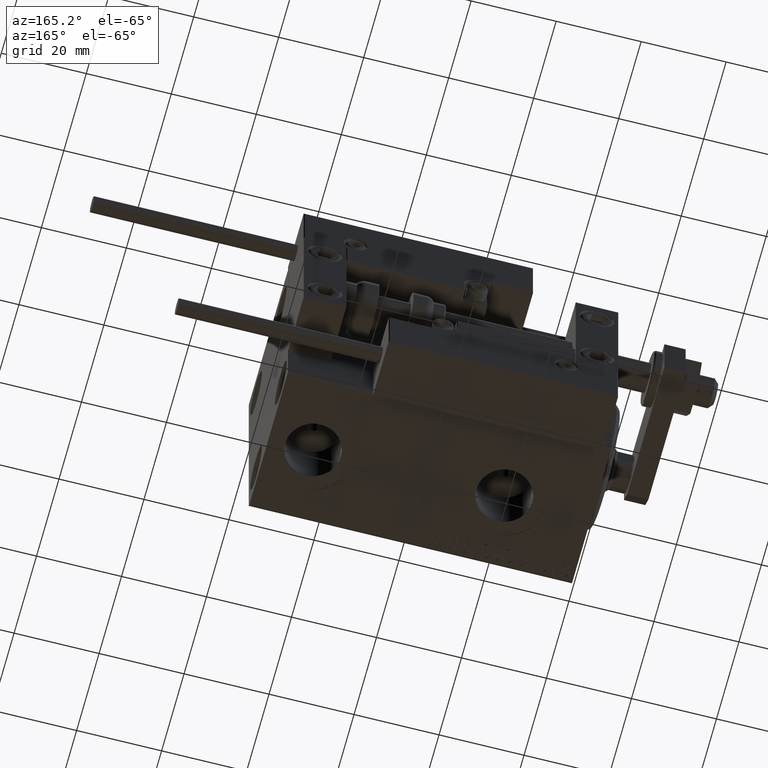
[diagram: clean part render]
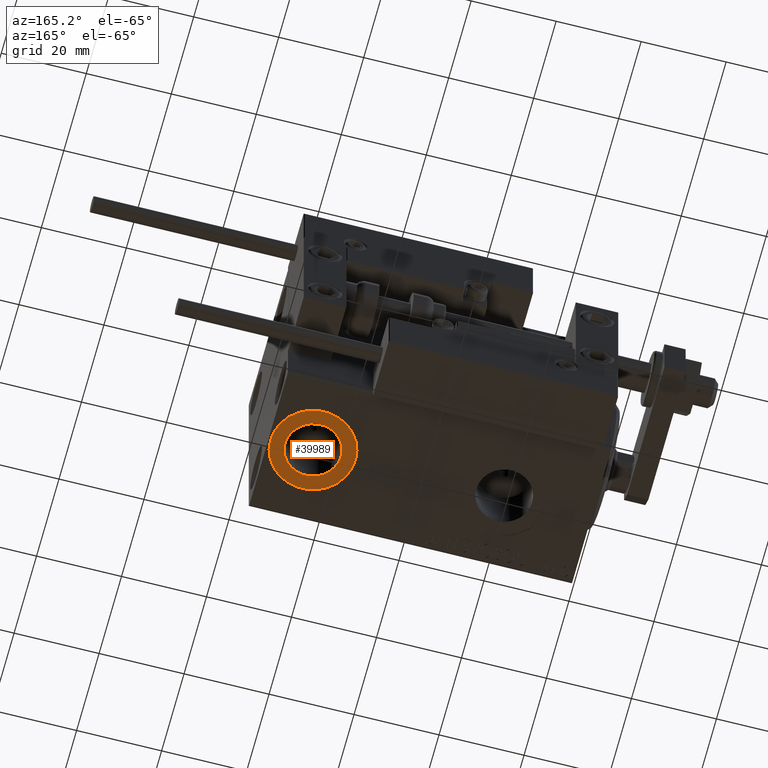
[diagram: same view with one face highlighted and labeled with its STEP entity id]
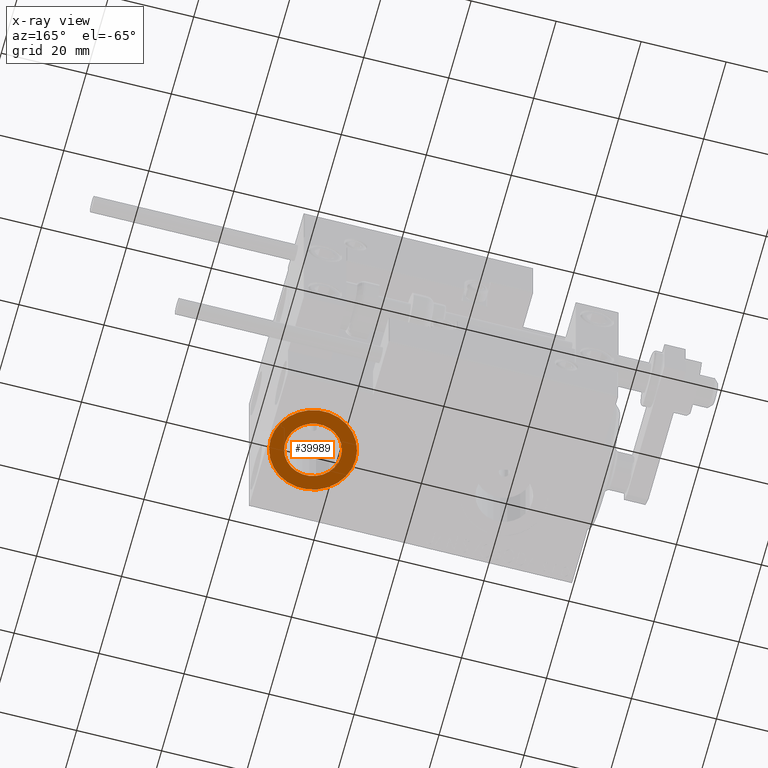
[diagram: x-ray of the same camera — body ghosted, the highlighted face saturated]
A machine part, auxiliary view. The second image highlights one B-rep face of the part: STEP entity #39989.
The next image is the same camera in x-ray: the body ghosted, the highlighted face saturated — about 0% of this face is hidden behind the body in this view.
In plain terms, the highlighted planar face has unit normal (0, 0, -1).
Its self-contained STEP definition (entity closure, byte-faithful):
#250 = CIRCLE ( 'NONE', #28593, 10.00000000000000178 ) ;
#2577 = CIRCLE ( 'NONE', #50856, 6.580000000000002736 ) ;
#3362 = CARTESIAN_POINT ( 'NONE',  ( 55.50000000000000000, -6.938893903907228378E-15, -27.40000000000000568 ) ) ;
#7080 = CIRCLE ( 'NONE', #48741, 6.580000000000002736 ) ;
#9534 = AXIS2_PLACEMENT_3D ( 'NONE', #45137, #45385, #49311 ) ;
#9772 = CARTESIAN_POINT ( 'NONE',  ( 65.50000000000000000, -6.938893903907228378E-15, -27.40000000000000568 ) ) ;
#10440 = CARTESIAN_POINT ( 'NONE',  ( 65.50000000000000000, -6.938893903907228378E-15, -27.40000000000000568 ) ) ;
#11810 = CARTESIAN_POINT ( 'NONE',  ( 58.92000000000000171, -6.938893903907228378E-15, -27.40000000000000568 ) ) ;
#12451 = DIRECTION ( 'NONE',  ( -1.000000000000000000, 0.000000000000000000, 0.000000000000000000 ) ) ;
#16961 = FACE_OUTER_BOUND ( 'NONE', #50442, .T. ) ;
#17024 = VERTEX_POINT ( 'NONE', #30019 ) ;
#21233 = VERTEX_POINT ( 'NONE', #11810 ) ;
#21723 = ORIENTED_EDGE ( 'NONE', *, *, #23210, .F. ) ;
#22010 = DIRECTION ( 'NONE',  ( -1.000000000000000000, 0.000000000000000000, 0.000000000000000000 ) ) ;
#23210 = EDGE_CURVE ( 'NONE', #21233, #49038, #2577, .T. ) ;
#23341 = CIRCLE ( 'NONE', #37617, 10.00000000000000178 ) ;
#25058 = FACE_BOUND ( 'NONE', #41183, .T. ) ;
#25173 = EDGE_CURVE ( 'NONE', #31300, #17024, #23341, .T. ) ;
#25701 = DIRECTION ( 'NONE',  ( -1.000000000000000000, 0.000000000000000000, 0.000000000000000000 ) ) ;
#28593 = AXIS2_PLACEMENT_3D ( 'NONE', #32042, #47430, #12451 ) ;
#29775 = DIRECTION ( 'NONE',  ( 0.000000000000000000, 0.000000000000000000, -1.000000000000000000 ) ) ;
#29842 = CARTESIAN_POINT ( 'NONE',  ( 65.50000000000000000, -6.938893903907228378E-15, -27.40000000000000568 ) ) ;
#30019 = CARTESIAN_POINT ( 'NONE',  ( 75.50000000000000000, -5.714247104759873741E-15, -27.40000000000000568 ) ) ;
#30091 = DIRECTION ( 'NONE',  ( 0.000000000000000000, 0.000000000000000000, -1.000000000000000000 ) ) ;
#31300 = VERTEX_POINT ( 'NONE', #3362 ) ;
#32042 = CARTESIAN_POINT ( 'NONE',  ( 65.50000000000000000, -6.938893903907228378E-15, -27.40000000000000568 ) ) ;
#32407 = EDGE_CURVE ( 'NONE', #17024, #31300, #250, .T. ) ;
#32697 = ORIENTED_EDGE ( 'NONE', *, *, #32407, .T. ) ;
#32915 = CARTESIAN_POINT ( 'NONE',  ( 72.07999999999999829, -6.133076310068269336E-15, -27.40000000000000568 ) ) ;
#36623 = ORIENTED_EDGE ( 'NONE', *, *, #46787, .F. ) ;
#36936 = DIRECTION ( 'NONE',  ( 0.000000000000000000, 0.000000000000000000, -1.000000000000000000 ) ) ;
#37617 = AXIS2_PLACEMENT_3D ( 'NONE', #29842, #30091, #22010 ) ;
#39989 = ADVANCED_FACE ( 'NONE', ( #25058, #16961 ), #40719, .T. ) ;
#40719 = PLANE ( 'NONE',  #9534 ) ;
#41183 = EDGE_LOOP ( 'NONE', ( #21723, #36623 ) ) ;
#45137 = CARTESIAN_POINT ( 'NONE',  ( 65.50000000000000000, -6.938893903907228378E-15, -27.40000000000000568 ) ) ;
#45385 = DIRECTION ( 'NONE',  ( 0.000000000000000000, 0.000000000000000000, -1.000000000000000000 ) ) ;
#45734 = ORIENTED_EDGE ( 'NONE', *, *, #25173, .T. ) ;
#46787 = EDGE_CURVE ( 'NONE', #49038, #21233, #7080, .T. ) ;
#47430 = DIRECTION ( 'NONE',  ( 0.000000000000000000, 0.000000000000000000, -1.000000000000000000 ) ) ;
#48741 = AXIS2_PLACEMENT_3D ( 'NONE', #10440, #29775, #49852 ) ;
#49038 = VERTEX_POINT ( 'NONE', #32915 ) ;
#49311 = DIRECTION ( 'NONE',  ( -1.000000000000000000, 0.000000000000000000, -0.000000000000000000 ) ) ;
#49852 = DIRECTION ( 'NONE',  ( -1.000000000000000000, 0.000000000000000000, 0.000000000000000000 ) ) ;
#50442 = EDGE_LOOP ( 'NONE', ( #45734, #32697 ) ) ;
#50856 = AXIS2_PLACEMENT_3D ( 'NONE', #9772, #36936, #25701 ) ;